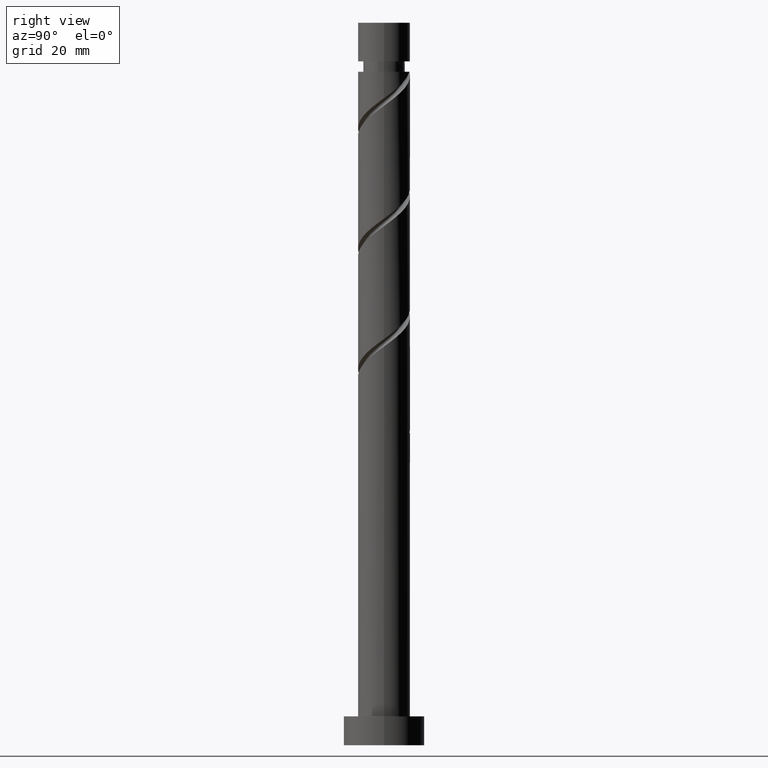
[diagram: clean part render]
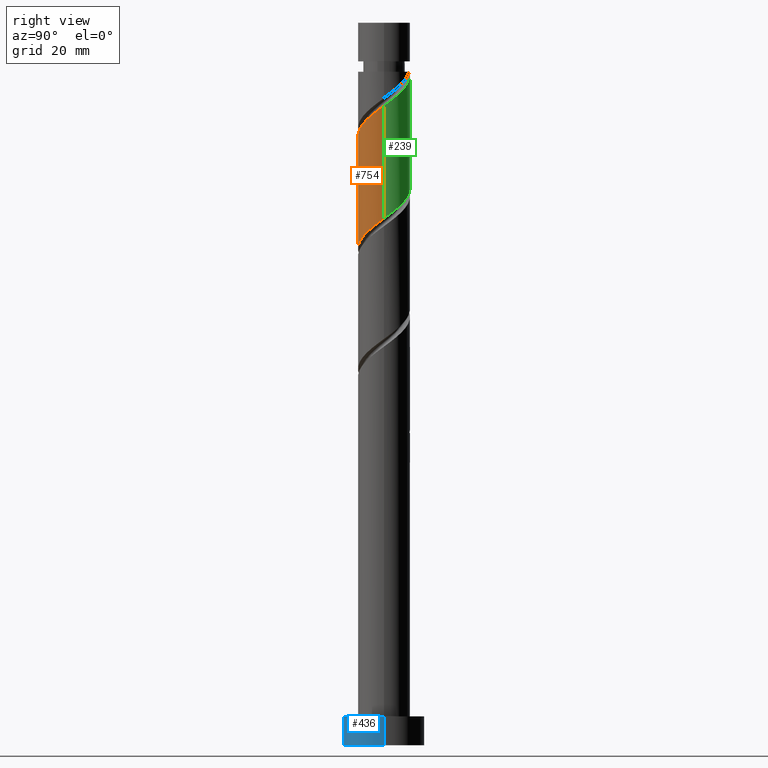
[diagram: same view with three faces highlighted in distinct colors, each labeled with its STEP entity id]
A machine part, right view with three faces highlighted in distinct colors.
Their STEP definitions:

[orange] entity #754 — the highlighted cylindrical surface (edge-blend (fillet) strip) has radius 4.5 mm, axis along (-0, -0, -1).
#18 = CARTESIAN_POINT ( 'NONE',  ( 3.041409897620717562, -3.316598533837753049, 88.39005511296683437 ) ) ;
#45 = CARTESIAN_POINT ( 'NONE',  ( 2.214425302316378019, -3.917438012331664776, 107.1400551129668628 ) ) ;
#52 = CARTESIAN_POINT ( 'NONE',  ( -2.516112295057651771, -3.798310538269919157, 103.4942217796335058 ) ) ;
#62 = CARTESIAN_POINT ( 'NONE',  ( -4.500000000000007105, -0.4522670168666346191, 100.5595572469044185 ) ) ;
#132 = CARTESIAN_POINT ( 'NONE',  ( -4.499999999999999112, 4.647861862793815006E-15, 80.72152422110376335 ) ) ;
#156 = CARTESIAN_POINT ( 'NONE',  ( 3.917438012331659447, -2.214425302316376687, 89.43172177963350578 ) ) ;
#174 = DIRECTION ( 'NONE',  ( -0.000000000000000000, -0.000000000000000000, -1.000000000000000000 ) ) ;
#191 = CARTESIAN_POINT ( 'NONE',  ( 4.500000000000005329, 6.896827280274654339E-16, 110.6419193381632198 ) ) ;
#209 = EDGE_LOOP ( 'NONE', ( #289, #1416, #225, #1011 ) ) ;
#211 = CARTESIAN_POINT ( 'NONE',  ( 4.500000000000005329, 6.896827280274654339E-16, 110.6419193381632198 ) ) ;
#225 = ORIENTED_EDGE ( 'NONE', *, *, #557, .T. ) ;
#229 = CARTESIAN_POINT ( 'NONE',  ( -4.500000000000005329, -1.289406839355696237E-15, 100.2252526714965768 ) ) ;
#243 = LINE ( 'NONE', #959, #1215 ) ;
#269 = CARTESIAN_POINT ( 'NONE',  ( 4.268168524479527548, -1.593964075227163102, 89.95255511296682016 ) ) ;
#274 =( BOUNDED_CURVE ( )  B_SPLINE_CURVE ( 2, ( #1146, #62, #910, #679, #1023, #548, #415, #52, #420, #1386, #302, #1157, #788, #560, #45, #1016, #1030, #1513, #919, #1396, #310, #1500, #191 ),
 .UNSPECIFIED., .F., .T. ) 
 B_SPLINE_CURVE_WITH_KNOTS ( ( 3, 2, 2, 2, 2, 2, 2, 2, 2, 2, 2, 3 ),
 ( 0.5545322023138550271, 0.5625000000000000000, 0.5749999999999999556, 0.5875000000000000222, 0.5999999999999999778, 0.6125000000000000444, 0.6250000000000000000, 0.6374999999999999556, 0.6500000000000000222, 0.6624999999999999778, 0.6750000000000000444, 0.6795322023138552492 ),
 .UNSPECIFIED. ) 
 CURVE ( )  GEOMETRIC_REPRESENTATION_ITEM ( )  RATIONAL_B_SPLINE_CURVE ( ( 0.9039174447099370679, 0.9019565955404661439, 0.9090909090909147228, 0.8978984914501307868, 0.9090909090909147228, 0.8978984914501307868, 0.9090909090909147228, 0.8978984914501307868, 0.9090909090909147228, 0.8978984914501307868, 0.9090909090909147228, 0.8978984914501307868, 0.9090909090909147228, 0.8978984914501307868, 0.9090909090909147228, 0.8978984914501307868, 0.9090909090909147228, 0.8978984914501307868, 0.9090909090909147228, 0.8978984914501307868, 0.9090909090909147228, 0.9050328050005791436, 0.9039174447099369569 ) ) 
 REPRESENTATION_ITEM ( '' )  );
#285 = CARTESIAN_POINT ( 'NONE',  ( 3.566707500183787793, -2.834886529405589606, 88.91088844630016297 ) ) ;
#289 = ORIENTED_EDGE ( 'NONE', *, *, #520, .F. ) ;
#302 = CARTESIAN_POINT ( 'NONE',  ( -0.5111045880706615030, -4.470880461391601557, 105.0567217796335484 ) ) ;
#310 = CARTESIAN_POINT ( 'NONE',  ( 4.470880461391601557, -0.5111045880706617250, 110.2650551129668486 ) ) ;
#357 =( BOUNDED_CURVE ( )  B_SPLINE_CURVE ( 2, ( #392, #374, #1490, #269, #156, #285, #18, #404, #398, #529, #1005, #650, #877, #1238, #660, #892, #1359, #999, #1223, #745, #1245, #862, #1333 ),
 .UNSPECIFIED., .F., .T. ) 
 B_SPLINE_CURVE_WITH_KNOTS ( ( 3, 2, 2, 2, 2, 2, 2, 2, 2, 2, 2, 3 ),
 ( 0.5545322023138552492, 0.5625000000000000000, 0.5749999999999999556, 0.5875000000000000222, 0.5999999999999999778, 0.6125000000000000444, 0.6250000000000000000, 0.6374999999999999556, 0.6500000000000000222, 0.6624999999999999778, 0.6750000000000000444, 0.6795322023138552492 ),
 .UNSPECIFIED. ) 
 CURVE ( )  GEOMETRIC_REPRESENTATION_ITEM ( )  RATIONAL_B_SPLINE_CURVE ( ( 0.9039174447099320719, 0.9019565955404615920, 0.9090909090909098378, 0.8978984914501261239, 0.9090909090909098378, 0.8978984914501261239, 0.9090909090909098378, 0.8978984914501261239, 0.9090909090909098378, 0.8978984914501261239, 0.9090909090909098378, 0.8978984914501261239, 0.9090909090909098378, 0.8978984914501261239, 0.9090909090909098378, 0.8978984914501261239, 0.9090909090909098378, 0.8978984914501261239, 0.9090909090909098378, 0.8978984914501261239, 0.9090909090909098378, 0.9050328050005742586, 0.9039174447099320719 ) ) 
 REPRESENTATION_ITEM ( '' )  );
#358 = DIRECTION ( 'NONE',  ( -0.000000000000000000, -0.000000000000000000, -1.000000000000000000 ) ) ;
#374 = CARTESIAN_POINT ( 'NONE',  ( 4.500000000000000000, -0.4522670168666480528, 90.80388631236259300 ) ) ;
#392 = CARTESIAN_POINT ( 'NONE',  ( 4.499999999999999112, -5.307558385254872381E-15, 91.13819088777044897 ) ) ;
#398 = CARTESIAN_POINT ( 'NONE',  ( 1.867667391381859776, -4.094119992766318106, 87.34838844630016297 ) ) ;
#404 = CARTESIAN_POINT ( 'NONE',  ( 2.516112295057647774, -3.798310538269914716, 87.86922177963347735 ) ) ;
#415 = CARTESIAN_POINT ( 'NONE',  ( -3.041409897620722447, -3.316598533837756602, 102.9733884463001914 ) ) ;
#420 = CARTESIAN_POINT ( 'NONE',  ( -1.867667391381863551, -4.094119992766323435, 104.0150551129668060 ) ) ;
#425 = VERTEX_POINT ( 'NONE', #229 ) ;
#469 = DIRECTION ( 'NONE',  ( -0.000000000000000000, -0.000000000000000000, -1.000000000000000000 ) ) ;
#473 = VERTEX_POINT ( 'NONE', #211 ) ;
#520 = EDGE_CURVE ( 'NONE', #473, #1125, #1065, .T. ) ;
#529 = CARTESIAN_POINT ( 'NONE',  ( 1.219222487706071112, -4.389929447262718831, 86.82755511296679174 ) ) ;
#539 = CARTESIAN_POINT ( 'NONE',  ( 0.000000000000000000, 0.000000000000000000, 125.0000000000000000 ) ) ;
#548 = CARTESIAN_POINT ( 'NONE',  ( -3.566707500183793567, -2.834886529405591826, 102.4525551129668344 ) ) ;
#557 = EDGE_CURVE ( 'NONE', #425, #818, #243, .T. ) ;
#560 = CARTESIAN_POINT ( 'NONE',  ( 1.593964075227163102, -4.268168524479535542, 106.6192217796334774 ) ) ;
#650 = CARTESIAN_POINT ( 'NONE',  ( -0.1970133115647529909, -4.551831475520468295, 85.78588844630016297 ) ) ;
#660 = CARTESIAN_POINT ( 'NONE',  ( -2.214425302316376687, -3.917438012331659447, 84.22338844630019139 ) ) ;
#672 = EDGE_CURVE ( 'NONE', #1125, #818, #357, .T. ) ;
#679 = CARTESIAN_POINT ( 'NONE',  ( -4.268168524479535542, -1.593964075227163324, 101.4108884463001630 ) ) ;
#745 = CARTESIAN_POINT ( 'NONE',  ( -4.389929447262719719, -1.219222487706071778, 81.61922177963349156 ) ) ;
#754 = ADVANCED_FACE ( 'NONE', ( #781 ), #1273, .T. ) ;
#781 = FACE_OUTER_BOUND ( 'NONE', #209, .T. ) ;
#788 = CARTESIAN_POINT ( 'NONE',  ( 0.8954886933959574913, -4.410000000000006359, 106.0983884463001914 ) ) ;
#790 = EDGE_CURVE ( 'NONE', #425, #473, #274, .T. ) ;
#818 = VERTEX_POINT ( 'NONE', #132 ) ;
#862 = CARTESIAN_POINT ( 'NONE',  ( -4.500000000000000000, -0.2563818185089456470, 80.91103531031102136 ) ) ;
#877 = CARTESIAN_POINT ( 'NONE',  ( -0.8954886933959579354, -4.410000000000001030, 85.26505511296684858 ) ) ;
#892 = CARTESIAN_POINT ( 'NONE',  ( -2.834886529405589606, -3.566707500183787793, 83.70255511296684858 ) ) ;
#910 = CARTESIAN_POINT ( 'NONE',  ( -4.410000000000006359, -0.8954886933959577133, 100.8900551129668344 ) ) ;
#919 = CARTESIAN_POINT ( 'NONE',  ( 4.094119992766323435, -1.867667391381863551, 109.2233884463001772 ) ) ;
#959 = CARTESIAN_POINT ( 'NONE',  ( -4.500000000000000000, 0.000000000000000000, 125.0000000000000000 ) ) ;
#999 = CARTESIAN_POINT ( 'NONE',  ( -3.798310538269913383, -2.516112295057647774, 82.66088844630014876 ) ) ;
#1005 = CARTESIAN_POINT ( 'NONE',  ( 0.5111045880706592826, -4.470880461391593563, 86.30672177963350578 ) ) ;
#1011 = ORIENTED_EDGE ( 'NONE', *, *, #672, .F. ) ;
#1016 = CARTESIAN_POINT ( 'NONE',  ( 2.834886529405591826, -3.566707500183793567, 107.6608884463001914 ) ) ;
#1023 = CARTESIAN_POINT ( 'NONE',  ( -3.917438012331664776, -2.214425302316378019, 101.9317217796335200 ) ) ;
#1030 = CARTESIAN_POINT ( 'NONE',  ( 3.316598533837756602, -3.041409897620722447, 108.1817217796335342 ) ) ;
#1065 = LINE ( 'NONE', #1550, #1084 ) ;
#1084 = VECTOR ( 'NONE', #469, 1000.000000000000000 ) ;
#1125 = VERTEX_POINT ( 'NONE', #1391 ) ;
#1146 = CARTESIAN_POINT ( 'NONE',  ( -4.500000000000005329, -1.289406839355696237E-15, 100.2252526714965768 ) ) ;
#1157 = CARTESIAN_POINT ( 'NONE',  ( 0.1970133115647514921, -4.551831475520473624, 105.5775551129668486 ) ) ;
#1215 = VECTOR ( 'NONE', #358, 1000.000000000000000 ) ;
#1223 = CARTESIAN_POINT ( 'NONE',  ( -4.094119992766318106, -1.867667391381859776, 82.14005511296683437 ) ) ;
#1238 = CARTESIAN_POINT ( 'NONE',  ( -1.593964075227162214, -4.268168524479527548, 84.74422177963349156 ) ) ;
#1245 = CARTESIAN_POINT ( 'NONE',  ( -4.470880461391593563, -0.5111045880706595046, 81.09838844630016297 ) ) ;
#1273 = CYLINDRICAL_SURFACE ( 'NONE', #1495, 4.500000000000000000 ) ;
#1333 = CARTESIAN_POINT ( 'NONE',  ( -4.499999999999999112, 4.647861862793815006E-15, 80.72152422110376335 ) ) ;
#1359 = CARTESIAN_POINT ( 'NONE',  ( -3.316598533837753049, -3.041409897620717562, 83.18172177963350578 ) ) ;
#1386 = CARTESIAN_POINT ( 'NONE',  ( -1.219222487706074887, -4.389929447262725937, 104.5358884463001772 ) ) ;
#1391 = CARTESIAN_POINT ( 'NONE',  ( 4.499999999999999112, -5.307558385254872381E-15, 91.13819088777044897 ) ) ;
#1396 = CARTESIAN_POINT ( 'NONE',  ( 4.389929447262725937, -1.219222487706074887, 109.7442217796335200 ) ) ;
#1416 = ORIENTED_EDGE ( 'NONE', *, *, #790, .F. ) ;
#1490 = CARTESIAN_POINT ( 'NONE',  ( 4.410000000000001030, -0.8954886933959582684, 90.47338844630016297 ) ) ;
#1495 = AXIS2_PLACEMENT_3D ( 'NONE', #539, #174, #1506 ) ;
#1500 = CARTESIAN_POINT ( 'NONE',  ( 4.500000000000005329, -0.2563818185089476454, 110.4524082489559476 ) ) ;
#1506 = DIRECTION ( 'NONE',  ( -1.000000000000000000, 0.000000000000000000, 0.000000000000000000 ) ) ;
#1513 = CARTESIAN_POINT ( 'NONE',  ( 3.798310538269919157, -2.516112295057651771, 108.7025551129668202 ) ) ;
#1550 = CARTESIAN_POINT ( 'NONE',  ( 4.500000000000000000, 5.510910596163088569E-16, 125.0000000000000000 ) ) ;

[blue] entity #436 — the highlighted cylindrical surface (partial cylindrical patch) has radius 7 mm, axis along (-0, -0, -1).
#88 = ORIENTED_EDGE ( 'NONE', *, *, #717, .T. ) ;
#96 = ORIENTED_EDGE ( 'NONE', *, *, #984, .T. ) ;
#179 = VECTOR ( 'NONE', #1545, 1000.000000000000000 ) ;
#181 = LINE ( 'NONE', #1160, #179 ) ;
#251 = AXIS2_PLACEMENT_3D ( 'NONE', #1264, #901, #1378 ) ;
#332 = DIRECTION ( 'NONE',  ( -0.000000000000000000, -0.000000000000000000, -1.000000000000000000 ) ) ;
#359 = EDGE_CURVE ( 'NONE', #570, #1182, #1171, .T. ) ;
#436 = ADVANCED_FACE ( 'NONE', ( #731 ), #1454, .T. ) ;
#444 = CARTESIAN_POINT ( 'NONE',  ( 0.000000000000000000, 0.000000000000000000, 5.000000000000000000 ) ) ;
#570 = VERTEX_POINT ( 'NONE', #1573 ) ;
#639 = CARTESIAN_POINT ( 'NONE',  ( 7.000000000000000000, 8.572527594031473190E-16, 5.000000000000000000 ) ) ;
#641 = EDGE_CURVE ( 'NONE', #1182, #1033, #707, .T. ) ;
#663 = VERTEX_POINT ( 'NONE', #1130 ) ;
#681 = DIRECTION ( 'NONE',  ( 1.000000000000000000, 0.000000000000000000, 0.000000000000000000 ) ) ;
#691 = AXIS2_PLACEMENT_3D ( 'NONE', #1206, #945, #1095 ) ;
#707 = LINE ( 'NONE', #1420, #1312 ) ;
#717 = EDGE_CURVE ( 'NONE', #663, #1033, #1086, .T. ) ;
#731 = FACE_OUTER_BOUND ( 'NONE', #911, .T. ) ;
#901 = DIRECTION ( 'NONE',  ( 0.000000000000000000, 0.000000000000000000, 1.000000000000000000 ) ) ;
#909 = ORIENTED_EDGE ( 'NONE', *, *, #641, .F. ) ;
#911 = EDGE_LOOP ( 'NONE', ( #909, #1558, #96, #88 ) ) ;
#945 = DIRECTION ( 'NONE',  ( -0.000000000000000000, -0.000000000000000000, -1.000000000000000000 ) ) ;
#960 = AXIS2_PLACEMENT_3D ( 'NONE', #444, #1158, #681 ) ;
#984 = EDGE_CURVE ( 'NONE', #570, #663, #181, .T. ) ;
#1033 = VERTEX_POINT ( 'NONE', #1305 ) ;
#1086 = CIRCLE ( 'NONE', #251, 7.000000000000000000 ) ;
#1095 = DIRECTION ( 'NONE',  ( -1.000000000000000000, 0.000000000000000000, 0.000000000000000000 ) ) ;
#1130 = CARTESIAN_POINT ( 'NONE',  ( -7.000000000000000000, 0.000000000000000000, 0.000000000000000000 ) ) ;
#1158 = DIRECTION ( 'NONE',  ( 0.000000000000000000, 0.000000000000000000, 1.000000000000000000 ) ) ;
#1160 = CARTESIAN_POINT ( 'NONE',  ( -7.000000000000000000, 0.000000000000000000, 5.000000000000000000 ) ) ;
#1171 = CIRCLE ( 'NONE', #960, 7.000000000000000000 ) ;
#1182 = VERTEX_POINT ( 'NONE', #639 ) ;
#1206 = CARTESIAN_POINT ( 'NONE',  ( 0.000000000000000000, 0.000000000000000000, 5.000000000000000000 ) ) ;
#1264 = CARTESIAN_POINT ( 'NONE',  ( 0.000000000000000000, 0.000000000000000000, 0.000000000000000000 ) ) ;
#1305 = CARTESIAN_POINT ( 'NONE',  ( 7.000000000000000000, 8.572527594031473190E-16, 0.000000000000000000 ) ) ;
#1312 = VECTOR ( 'NONE', #332, 1000.000000000000000 ) ;
#1378 = DIRECTION ( 'NONE',  ( 1.000000000000000000, 0.000000000000000000, 0.000000000000000000 ) ) ;
#1420 = CARTESIAN_POINT ( 'NONE',  ( 7.000000000000000000, 8.572527594031473190E-16, 5.000000000000000000 ) ) ;
#1454 = CYLINDRICAL_SURFACE ( 'NONE', #691, 7.000000000000000000 ) ;
#1545 = DIRECTION ( 'NONE',  ( -0.000000000000000000, -0.000000000000000000, -1.000000000000000000 ) ) ;
#1558 = ORIENTED_EDGE ( 'NONE', *, *, #359, .F. ) ;
#1573 = CARTESIAN_POINT ( 'NONE',  ( -7.000000000000000000, 0.000000000000000000, 5.000000000000000000 ) ) ;

[green] entity #239 — the highlighted cylindrical surface (edge-blend (fillet) strip) has radius 4.5 mm, axis along (-0, -0, -1).
#28 = CARTESIAN_POINT ( 'NONE',  ( -4.500000000000000000, 0.000000000000000000, 125.0000000000000000 ) ) ;
#114 = CARTESIAN_POINT ( 'NONE',  ( 0.1970133115647524913, 4.551831475520468295, 96.20255511296679174 ) ) ;
#115 = CARTESIAN_POINT ( 'NONE',  ( 4.500000000000005329, 6.896827280274654339E-16, 110.6419193381632198 ) ) ;
#120 = CARTESIAN_POINT ( 'NONE',  ( -4.500000000000000000, 0.4522670168666432233, 101.2205529790292360 ) ) ;
#131 = CARTESIAN_POINT ( 'NONE',  ( -1.219222487706071778, 4.389929447262719719, 97.24422177963349156 ) ) ;
#177 = VERTEX_POINT ( 'NONE', #388 ) ;
#180 = CARTESIAN_POINT ( 'NONE',  ( 3.798310538269914272, 2.516112295057646886, 93.07755511296680595 ) ) ;
#188 = EDGE_CURVE ( 'NONE', #1145, #1125, #776, .T. ) ;
#195 =( BOUNDED_CURVE ( )  B_SPLINE_CURVE ( 2, ( #115, #714, #367, #1083, #460, #832, #1212, #840, #1319, #1566, #856, #597, #1303 ),
 .UNSPECIFIED., .F., .T. ) 
 B_SPLINE_CURVE_WITH_KNOTS ( ( 3, 2, 2, 2, 2, 2, 3 ),
 ( 0.6795322023138552492, 0.6875000000000000000, 0.6999999999999999556, 0.7125000000000000222, 0.7249999999999999778, 0.7375000000000000444, 0.7500000000000000000 ),
 .UNSPECIFIED. ) 
 CURVE ( )  GEOMETRIC_REPRESENTATION_ITEM ( )  RATIONAL_B_SPLINE_CURVE ( ( 0.9039174447099369569, 0.9019565955404662549, 0.9090909090909147228, 0.8978984914501307868, 0.9090909090909147228, 0.8978984914501307868, 0.9090909090909147228, 0.8978984914501307868, 0.9090909090909147228, 0.8978984914501307868, 0.9090909090909147228, 0.8978984914501307868, 0.9090909090909147228 ) ) 
 REPRESENTATION_ITEM ( '' )  );
#211 = CARTESIAN_POINT ( 'NONE',  ( 4.500000000000005329, 6.896827280274654339E-16, 110.6419193381632198 ) ) ;
#212 = EDGE_CURVE ( 'NONE', #177, #1145, #1132, .T. ) ;
#239 = ADVANCED_FACE ( 'NONE', ( #1162 ), #908, .T. ) ;
#275 = CIRCLE ( 'NONE', #1543, 4.499999999999999112 ) ;
#283 = DIRECTION ( 'NONE',  ( -1.000000000000000000, 0.000000000000000000, 0.000000000000000000 ) ) ;
#294 = DIRECTION ( 'NONE',  ( -0.000000000000000000, -0.000000000000000000, -1.000000000000000000 ) ) ;
#356 = CARTESIAN_POINT ( 'NONE',  ( -2.516112295057647774, 3.798310538269914272, 98.28588844630016297 ) ) ;
#365 = CARTESIAN_POINT ( 'NONE',  ( -3.041409897620717562, 3.316598533837753049, 98.80672177963350578 ) ) ;
#367 = CARTESIAN_POINT ( 'NONE',  ( 4.410000000000006359, 0.8954886933959571582, 111.3067217796335200 ) ) ;
#388 = CARTESIAN_POINT ( 'NONE',  ( -4.499999999999999112, 0.000000000000000000, 116.5150551129668344 ) ) ;
#401 = CARTESIAN_POINT ( 'NONE',  ( 4.389929447262719719, 1.219222487706071112, 92.03588844630016297 ) ) ;
#405 = ORIENTED_EDGE ( 'NONE', *, *, #468, .F. ) ;
#455 = ORIENTED_EDGE ( 'NONE', *, *, #942, .T. ) ;
#460 = CARTESIAN_POINT ( 'NONE',  ( 3.917438012331664776, 2.214425302316378019, 112.3483884463001914 ) ) ;
#468 = EDGE_CURVE ( 'NONE', #473, #1528, #195, .T. ) ;
#469 = DIRECTION ( 'NONE',  ( -0.000000000000000000, -0.000000000000000000, -1.000000000000000000 ) ) ;
#473 = VERTEX_POINT ( 'NONE', #211 ) ;
#493 = CARTESIAN_POINT ( 'NONE',  ( 2.834886529405589606, 3.566707500183787349, 94.11922177963347735 ) ) ;
#518 = CARTESIAN_POINT ( 'NONE',  ( -4.268168524479529324, 1.593964075227162214, 100.3692217796334774 ) ) ;
#520 = EDGE_CURVE ( 'NONE', #473, #1125, #1065, .T. ) ;
#554 = CARTESIAN_POINT ( 'NONE',  ( 4.500000000000000000, 0.2563818185089450363, 91.32770197697773540 ) ) ;
#590 = VECTOR ( 'NONE', #879, 1000.000000000000000 ) ;
#597 = CARTESIAN_POINT ( 'NONE',  ( -0.1970133115647508815, 4.551831475520473624, 115.9942217796335058 ) ) ;
#617 = CARTESIAN_POINT ( 'NONE',  ( -3.566707500183787793, 2.834886529405589162, 99.32755511296682016 ) ) ;
#654 = ORIENTED_EDGE ( 'NONE', *, *, #212, .F. ) ;
#689 = ORIENTED_EDGE ( 'NONE', *, *, #188, .F. ) ;
#714 = CARTESIAN_POINT ( 'NONE',  ( 4.500000000000004441, 0.4522670168666463875, 110.9762239135711042 ) ) ;
#730 = CARTESIAN_POINT ( 'NONE',  ( -0.5111045880706599487, 4.470880461391593563, 96.72338844630016297 ) ) ;
#736 = CARTESIAN_POINT ( 'NONE',  ( 1.593964075227163102, 4.268168524479527548, 95.16088844630014876 ) ) ;
#776 =( BOUNDED_CURVE ( )  B_SPLINE_CURVE ( 2, ( #1343, #120, #1221, #518, #1444, #617, #365, #356, #1081, #131, #730, #114, #1564, #736, #1211, #493, #861, #180, #1002, #401, #1152, #554, #1025 ),
 .UNSPECIFIED., .F., .T. ) 
 B_SPLINE_CURVE_WITH_KNOTS ( ( 3, 2, 2, 2, 2, 2, 2, 2, 2, 2, 2, 3 ),
 ( 0.4295322023138551382, 0.4375000000000000000, 0.4500000000000000111, 0.4625000000000000222, 0.4749999999999999778, 0.4874999999999999889, 0.5000000000000000000, 0.5124999999999999556, 0.5250000000000000222, 0.5374999999999999778, 0.5500000000000000444, 0.5545322023138552492 ),
 .UNSPECIFIED. ) 
 CURVE ( )  GEOMETRIC_REPRESENTATION_ITEM ( )  RATIONAL_B_SPLINE_CURVE ( ( 0.9039174447099322940, 0.9019565955404615920, 0.9090909090909098378, 0.8978984914501261239, 0.9090909090909098378, 0.8978984914501261239, 0.9090909090909098378, 0.8978984914501261239, 0.9090909090909098378, 0.8978984914501261239, 0.9090909090909098378, 0.8978984914501261239, 0.9090909090909098378, 0.8978984914501261239, 0.9090909090909098378, 0.8978984914501261239, 0.9090909090909098378, 0.8978984914501261239, 0.9090909090909098378, 0.8978984914501261239, 0.9090909090909098378, 0.9050328050005742586, 0.9039174447099320719 ) ) 
 REPRESENTATION_ITEM ( '' )  );
#816 = AXIS2_PLACEMENT_3D ( 'NONE', #1028, #1385, #283 ) ;
#832 = CARTESIAN_POINT ( 'NONE',  ( 3.566707500183794455, 2.834886529405591826, 112.8692217796335342 ) ) ;
#840 = CARTESIAN_POINT ( 'NONE',  ( 2.516112295057652659, 3.798310538269918712, 113.9108884463001630 ) ) ;
#856 = CARTESIAN_POINT ( 'NONE',  ( 0.5111045880706623912, 4.470880461391601557, 115.4733884463001772 ) ) ;
#861 = CARTESIAN_POINT ( 'NONE',  ( 3.316598533837753049, 3.041409897620717562, 93.59838844630017718 ) ) ;
#879 = DIRECTION ( 'NONE',  ( -0.000000000000000000, -0.000000000000000000, -1.000000000000000000 ) ) ;
#908 = CYLINDRICAL_SURFACE ( 'NONE', #816, 4.500000000000000000 ) ;
#942 = EDGE_CURVE ( 'NONE', #177, #1528, #275, .T. ) ;
#1002 = CARTESIAN_POINT ( 'NONE',  ( 4.094119992766318106, 1.867667391381859554, 92.55672177963351999 ) ) ;
#1025 = CARTESIAN_POINT ( 'NONE',  ( 4.499999999999999112, -5.307558385254872381E-15, 91.13819088777044897 ) ) ;
#1028 = CARTESIAN_POINT ( 'NONE',  ( 0.000000000000000000, 0.000000000000000000, 125.0000000000000000 ) ) ;
#1065 = LINE ( 'NONE', #1550, #1084 ) ;
#1073 = CARTESIAN_POINT ( 'NONE',  ( -0.8954886933959572692, 4.410000000000009912, 116.5150551129668344 ) ) ;
#1081 = CARTESIAN_POINT ( 'NONE',  ( -1.867667391381860220, 4.094119992766318106, 97.76505511296687700 ) ) ;
#1083 = CARTESIAN_POINT ( 'NONE',  ( 4.268168524479535542, 1.593964075227162658, 111.8275551129668202 ) ) ;
#1084 = VECTOR ( 'NONE', #469, 1000.000000000000000 ) ;
#1125 = VERTEX_POINT ( 'NONE', #1391 ) ;
#1132 = LINE ( 'NONE', #28, #590 ) ;
#1133 = ORIENTED_EDGE ( 'NONE', *, *, #520, .T. ) ;
#1145 = VERTEX_POINT ( 'NONE', #1285 ) ;
#1152 = CARTESIAN_POINT ( 'NONE',  ( 4.470880461391593563, 0.5111045880706588385, 91.51505511296687700 ) ) ;
#1162 = FACE_OUTER_BOUND ( 'NONE', #1414, .T. ) ;
#1211 = CARTESIAN_POINT ( 'NONE',  ( 2.214425302316377575, 3.917438012331659447, 94.64005511296683437 ) ) ;
#1212 = CARTESIAN_POINT ( 'NONE',  ( 3.041409897620723335, 3.316598533837756158, 113.3900551129668202 ) ) ;
#1221 = CARTESIAN_POINT ( 'NONE',  ( -4.410000000000001030, 0.8954886933959577133, 100.8900551129668344 ) ) ;
#1285 = CARTESIAN_POINT ( 'NONE',  ( -4.499999999999999112, 2.368910239746524424E-15, 101.5548575544371062 ) ) ;
#1303 = CARTESIAN_POINT ( 'NONE',  ( -0.8954886933959573803, 4.410000000000009912, 116.5150551129668344 ) ) ;
#1319 = CARTESIAN_POINT ( 'NONE',  ( 1.867667391381863773, 4.094119992766323435, 114.4317217796334916 ) ) ;
#1343 = CARTESIAN_POINT ( 'NONE',  ( -4.499999999999999112, 2.368910239746524029E-15, 101.5548575544371062 ) ) ;
#1377 = CARTESIAN_POINT ( 'NONE',  ( 0.000000000000000000, 0.000000000000000000, 116.5150551129668344 ) ) ;
#1385 = DIRECTION ( 'NONE',  ( -0.000000000000000000, -0.000000000000000000, -1.000000000000000000 ) ) ;
#1391 = CARTESIAN_POINT ( 'NONE',  ( 4.499999999999999112, -5.307558385254872381E-15, 91.13819088777044897 ) ) ;
#1414 = EDGE_LOOP ( 'NONE', ( #405, #1133, #689, #654, #455 ) ) ;
#1444 = CARTESIAN_POINT ( 'NONE',  ( -3.917438012331659447, 2.214425302316376687, 99.84838844630020560 ) ) ;
#1477 = DIRECTION ( 'NONE',  ( -1.000000000000000000, 0.000000000000000000, 0.000000000000000000 ) ) ;
#1528 = VERTEX_POINT ( 'NONE', #1073 ) ;
#1543 = AXIS2_PLACEMENT_3D ( 'NONE', #1377, #294, #1477 ) ;
#1550 = CARTESIAN_POINT ( 'NONE',  ( 4.500000000000000000, 5.510910596163088569E-16, 125.0000000000000000 ) ) ;
#1564 = CARTESIAN_POINT ( 'NONE',  ( 0.8954886933959584905, 4.410000000000001030, 95.68172177963350578 ) ) ;
#1566 = CARTESIAN_POINT ( 'NONE',  ( 1.219222487706075109, 4.389929447262725937, 114.9525551129668770 ) ) ;